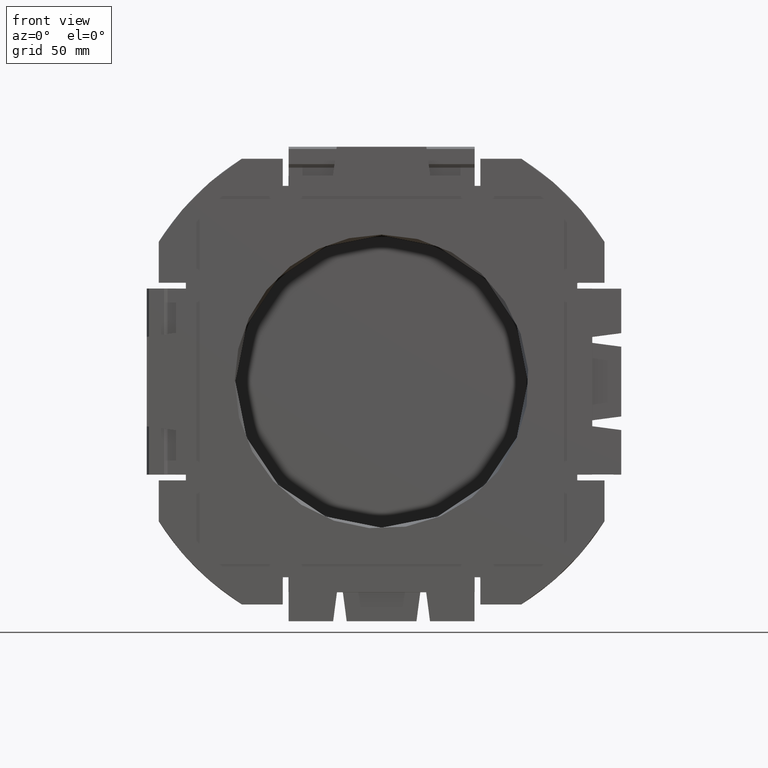
[diagram: clean part render]
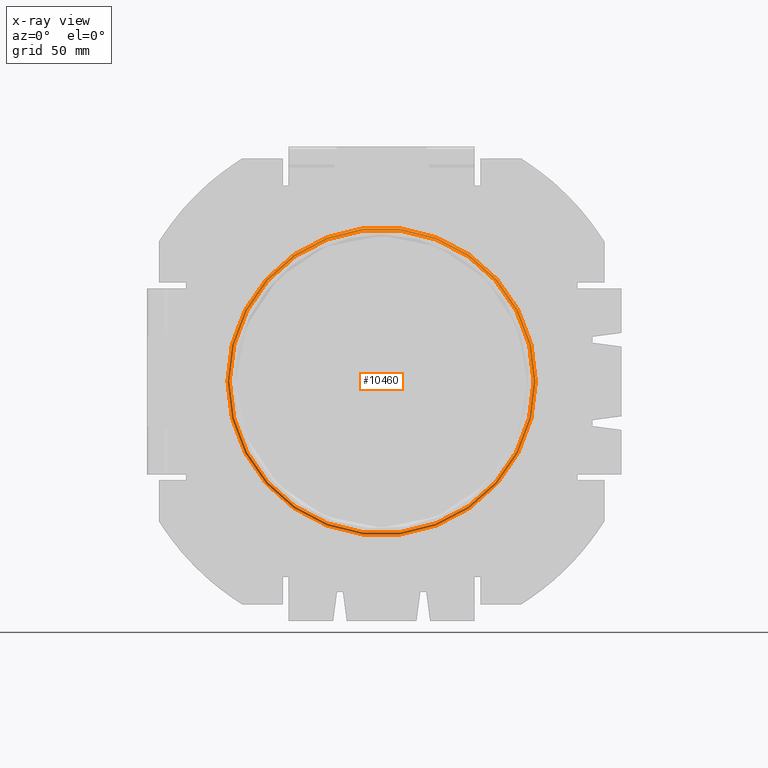
[diagram: x-ray — body ghosted, one internal face saturated and labeled with its STEP entity id]
A machine part, front view, then the same camera in x-ray: the body is ghosted and one INTERNAL B-rep face — a face not visible from any outside direction — is saturated and labeled: STEP entity #10460.
In plain terms, the highlighted conical surface has half-angle 50 deg.
Its self-contained STEP definition (entity closure, byte-faithful):
#139=CONICAL_SURFACE('',#11233,78.8,0.872664625997171);
#624=CIRCLE('',#10948,78.45);
#634=CIRCLE('',#11026,79.5225782333348);
#1136=FACE_OUTER_BOUND('',#1694,.T.);
#1694=EDGE_LOOP('',(#8714,#8715,#8716,#8717));
#2657=LINE('',#19953,#3641);
#3641=VECTOR('',#13510,78.8);
#4408=VERTEX_POINT('',#17580);
#4554=VERTEX_POINT('',#18619);
#5502=EDGE_CURVE('',#4408,#4408,#624,.T.);
#5754=EDGE_CURVE('',#4554,#4554,#634,.T.);
#6058=EDGE_CURVE('',#4408,#4554,#2657,.T.);
#8714=ORIENTED_EDGE('',*,*,#5502,.T.);
#8715=ORIENTED_EDGE('',*,*,#6058,.T.);
#8716=ORIENTED_EDGE('',*,*,#5754,.T.);
#8717=ORIENTED_EDGE('',*,*,#6058,.F.);
#10460=ADVANCED_FACE('',(#1136),#139,.T.);
#10948=AXIS2_PLACEMENT_3D('',#17582,#12496,#12497);
#11026=AXIS2_PLACEMENT_3D('',#18620,#12859,#12860);
#11233=AXIS2_PLACEMENT_3D('',#19952,#13508,#13509);
#12496=DIRECTION('center_axis',(0.,1.,0.));
#12497=DIRECTION('ref_axis',(1.,0.,0.));
#12859=DIRECTION('center_axis',(0.,-1.,0.));
#12860=DIRECTION('ref_axis',(1.,0.,0.));
#13508=DIRECTION('center_axis',(0.,1.,0.));
#13509=DIRECTION('ref_axis',(1.,0.,0.));
#13510=DIRECTION('',(-0.766044443118982,0.642787609686534,9.38133875270278E-17));
#17580=CARTESIAN_POINT('',(-78.45,-80.6852572738409,9.60735413931099E-15));
#17582=CARTESIAN_POINT('Origin',(0.,-80.6852572738409,0.));
#18619=CARTESIAN_POINT('',(-79.5225782333348,-79.7852572738409,-9.73870708933984E-15));
#18620=CARTESIAN_POINT('Origin',(0.,-79.7852572738409,0.));
#19952=CARTESIAN_POINT('Origin',(0.,-80.3915724029289,0.));
#19953=CARTESIAN_POINT('',(-78.8,-80.3915724029289,9.65021677728114E-15));